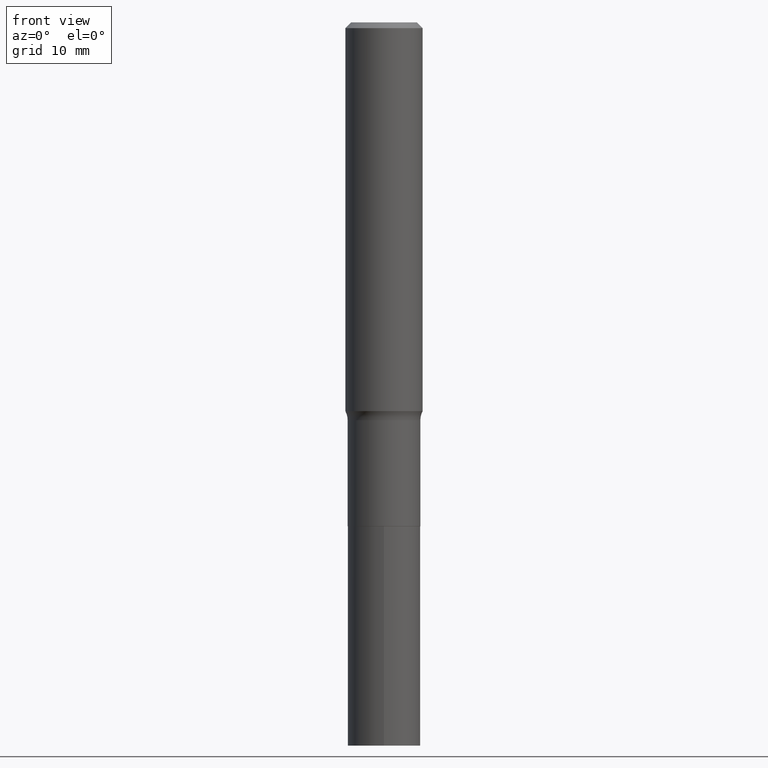
[diagram: clean part render]
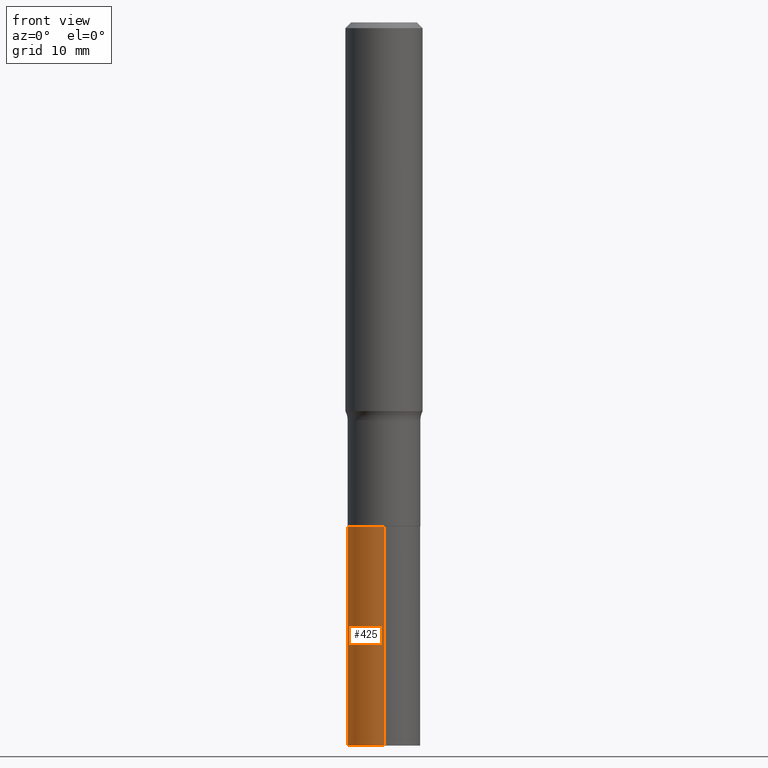
[diagram: same view with one face highlighted and labeled with its STEP entity id]
A machine part, front view. The second image highlights one B-rep face of the part: STEP entity #425.
In plain terms, the highlighted cylindrical surface (edge-blend (fillet) strip) has radius 3.7706 mm, axis along (-0, 0, 1).
Its self-contained STEP definition (entity closure, byte-faithful):
#2 = CARTESIAN_POINT ( 'NONE',  ( 1.054800691235940897E-15, 0.1484499999999928099, -2.056800000000000406 ) ) ;
#15 = CARTESIAN_POINT ( 'NONE',  ( 5.029840240561588648E-29, -7.181278817732581070E-15, -2.056799999999999962 ) ) ;
#21 = AXIS2_PLACEMENT_3D ( 'NONE', #234, #277, #204 ) ;
#31 = CARTESIAN_POINT ( 'NONE',  ( 7.221015963033956989E-29, -1.030959501281485395E-14, -2.952800000000000313 ) ) ;
#54 = DIRECTION ( 'NONE',  ( -2.445508618830767481E-29, 3.491424324868607182E-15, 1.000000000000000000 ) ) ;
#88 = LINE ( 'NONE', #338, #269 ) ;
#134 = CYLINDRICAL_SURFACE ( 'NONE', #21, 0.1484499999999999986 ) ;
#141 = VERTEX_POINT ( 'NONE', #2 ) ;
#161 = EDGE_CURVE ( 'NONE', #383, #306, #202, .T. ) ;
#164 = CARTESIAN_POINT ( 'NONE',  ( -1.036620809502475803E-15, -0.1484500000000071873, -2.056799999999999073 ) ) ;
#171 = ORIENTED_EDGE ( 'NONE', *, *, #161, .T. ) ;
#173 = DIRECTION ( 'NONE',  ( -2.445508618830767481E-29, 3.491424324868607182E-15, 1.000000000000000000 ) ) ;
#175 = DIRECTION ( 'NONE',  ( -2.445508618830767481E-29, 3.491424324868607182E-15, 1.000000000000000000 ) ) ;
#198 = DIRECTION ( 'NONE',  ( -6.982962677686265133E-15, -1.000000000000000000, 3.680495781292372402E-15 ) ) ;
#201 = CARTESIAN_POINT ( 'NONE',  ( -1.036620809502453912E-15, -0.1484500000000102959, -2.952799999999999869 ) ) ;
#202 = LINE ( 'NONE', #164, #281 ) ;
#204 = DIRECTION ( 'NONE',  ( -6.982962677686265133E-15, -1.000000000000000000, 3.680495781292372402E-15 ) ) ;
#205 = AXIS2_PLACEMENT_3D ( 'NONE', #31, #173, #380 ) ;
#221 = EDGE_LOOP ( 'NONE', ( #314, #450, #171, #226 ) ) ;
#226 = ORIENTED_EDGE ( 'NONE', *, *, #362, .F. ) ;
#234 = CARTESIAN_POINT ( 'NONE',  ( 5.029840240561588648E-29, -7.181278817732581070E-15, -2.056799999999999962 ) ) ;
#263 = CIRCLE ( 'NONE', #325, 0.1484499999999999986 ) ;
#269 = VECTOR ( 'NONE', #175, 39.37007874015748143 ) ;
#277 = DIRECTION ( 'NONE',  ( -2.445508618830767481E-29, 3.491424324868607182E-15, 1.000000000000000000 ) ) ;
#281 = VECTOR ( 'NONE', #442, 39.37007874015748143 ) ;
#288 = CARTESIAN_POINT ( 'NONE',  ( -1.036620809502475803E-15, -0.1484500000000071873, -2.056799999999999073 ) ) ;
#306 = VERTEX_POINT ( 'NONE', #288 ) ;
#314 = ORIENTED_EDGE ( 'NONE', *, *, #409, .F. ) ;
#316 = CIRCLE ( 'NONE', #205, 0.1484499999999999986 ) ;
#325 = AXIS2_PLACEMENT_3D ( 'NONE', #15, #54, #198 ) ;
#338 = CARTESIAN_POINT ( 'NONE',  ( 1.054800691235918809E-15, 0.1484499999999928099, -2.056800000000000406 ) ) ;
#362 = EDGE_CURVE ( 'NONE', #141, #306, #263, .T. ) ;
#377 = CARTESIAN_POINT ( 'NONE',  ( 1.054800691235929853E-15, 0.1484499999999896735, -2.952800000000000757 ) ) ;
#380 = DIRECTION ( 'NONE',  ( -6.982962677686265133E-15, -1.000000000000000000, 3.680495781292372402E-15 ) ) ;
#383 = VERTEX_POINT ( 'NONE', #201 ) ;
#400 = EDGE_CURVE ( 'NONE', #440, #383, #316, .T. ) ;
#409 = EDGE_CURVE ( 'NONE', #440, #141, #88, .T. ) ;
#425 = ADVANCED_FACE ( 'NONE', ( #441 ), #134, .T. ) ;
#440 = VERTEX_POINT ( 'NONE', #377 ) ;
#441 = FACE_OUTER_BOUND ( 'NONE', #221, .T. ) ;
#442 = DIRECTION ( 'NONE',  ( -2.445508618830767481E-29, 3.491424324868607182E-15, 1.000000000000000000 ) ) ;
#450 = ORIENTED_EDGE ( 'NONE', *, *, #400, .T. ) ;